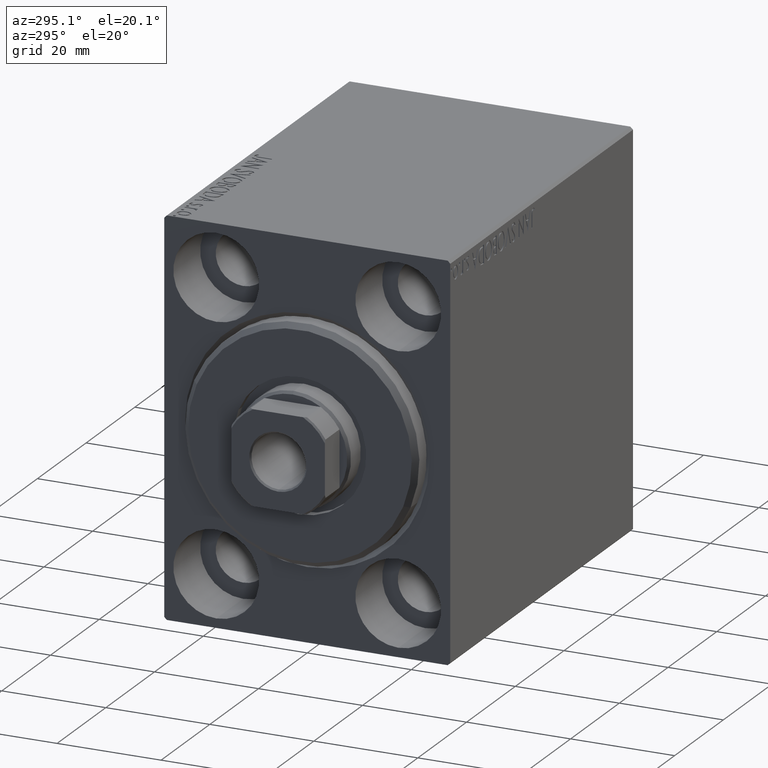
[diagram: clean part render]
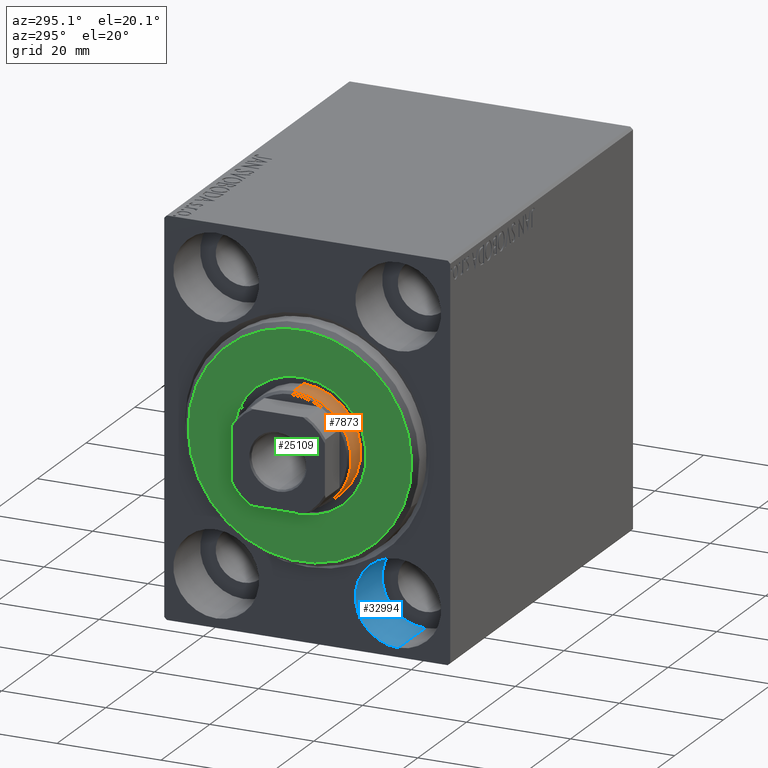
[diagram: same view with three faces highlighted in distinct colors, each labeled with its STEP entity id]
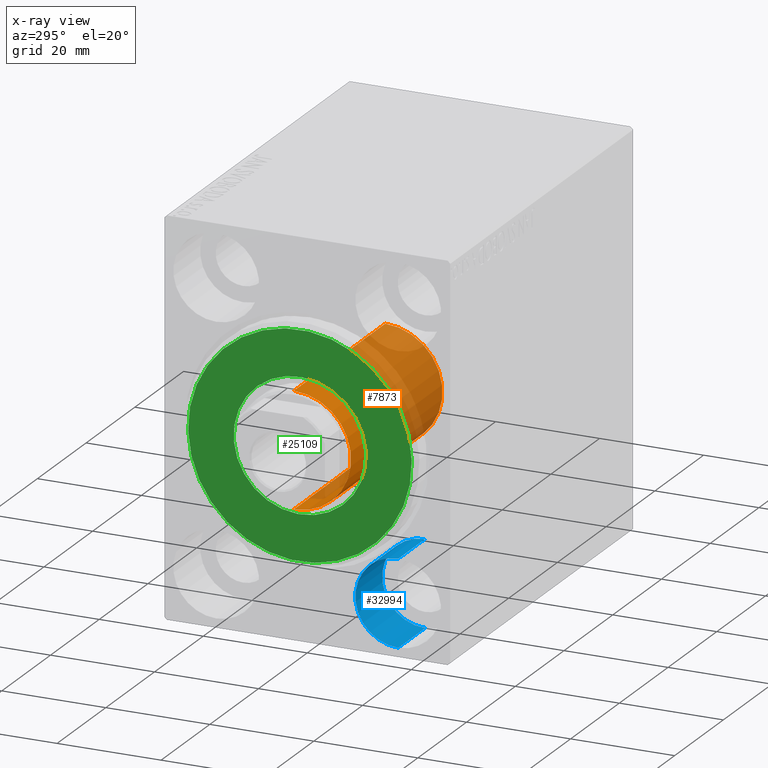
[diagram: x-ray of the same camera — body ghosted, the three highlighted faces saturated]
A machine part, auxiliary view with three faces highlighted in distinct colors.
The next image is the same camera in x-ray (body ghosted, the three faces saturated) — at least one of them is partly hidden behind the body in this view.
Their STEP definitions:

[orange] entity #7873 — the highlighted cylindrical surface (partial cylindrical patch) has radius 11 mm, axis along (1, -0, -0).
#629 = CARTESIAN_POINT ( 'NONE',  ( 11.00000000000000000, 1.347111479062088405E-15, 71.00000000000001421 ) ) ;
#1536 = DIRECTION ( 'NONE',  ( 1.000000000000000000, 0.000000000000000000, 0.000000000000000000 ) ) ;
#2040 = VECTOR ( 'NONE', #42073, 1000.000000000000000 ) ;
#3826 = DIRECTION ( 'NONE',  ( 1.000000000000000000, 0.000000000000000000, 0.000000000000000000 ) ) ;
#4410 = DIRECTION ( 'NONE',  ( 0.000000000000000000, 0.000000000000000000, -1.000000000000000000 ) ) ;
#5374 = CARTESIAN_POINT ( 'NONE',  ( -11.00000000000000000, 0.000000000000000000, 70.50000000000002842 ) ) ;
#6609 = EDGE_CURVE ( 'NONE', #34432, #40730, #32185, .T. ) ;
#6959 = EDGE_CURVE ( 'NONE', #12022, #11930, #20902, .T. ) ;
#7501 = CYLINDRICAL_SURFACE ( 'NONE', #43485, 11.00000000000000000 ) ;
#7873 = ADVANCED_FACE ( 'NONE', ( #25341 ), #7501, .T. ) ;
#11074 = AXIS2_PLACEMENT_3D ( 'NONE', #34007, #20134, #3826 ) ;
#11930 = VERTEX_POINT ( 'NONE', #5374 ) ;
#12022 = VERTEX_POINT ( 'NONE', #14610 ) ;
#13533 = VECTOR ( 'NONE', #17152, 1000.000000000000000 ) ;
#14500 = CARTESIAN_POINT ( 'NONE',  ( 11.00000000000000000, 1.347111479062088405E-15, 33.00000000000000000 ) ) ;
#14610 = CARTESIAN_POINT ( 'NONE',  ( 11.00000000000000000, 1.347111479062088405E-15, 70.50000000000002842 ) ) ;
#15673 = EDGE_CURVE ( 'NONE', #11930, #34432, #38557, .T. ) ;
#17152 = DIRECTION ( 'NONE',  ( -0.000000000000000000, -0.000000000000000000, -1.000000000000000000 ) ) ;
#20134 = DIRECTION ( 'NONE',  ( 0.000000000000000000, 0.000000000000000000, 1.000000000000000000 ) ) ;
#20902 = CIRCLE ( 'NONE', #42753, 11.00000000000000000 ) ;
#20921 = CARTESIAN_POINT ( 'NONE',  ( 0.000000000000000000, 0.000000000000000000, 70.50000000000002842 ) ) ;
#20927 = CARTESIAN_POINT ( 'NONE',  ( 0.000000000000000000, 0.000000000000000000, 71.00000000000001421 ) ) ;
#21570 = ORIENTED_EDGE ( 'NONE', *, *, #6959, .T. ) ;
#22050 = ORIENTED_EDGE ( 'NONE', *, *, #6609, .T. ) ;
#23867 = ORIENTED_EDGE ( 'NONE', *, *, #27569, .F. ) ;
#25341 = FACE_OUTER_BOUND ( 'NONE', #30188, .T. ) ;
#27569 = EDGE_CURVE ( 'NONE', #12022, #40730, #40512, .T. ) ;
#29050 = ORIENTED_EDGE ( 'NONE', *, *, #15673, .T. ) ;
#30188 = EDGE_LOOP ( 'NONE', ( #23867, #21570, #29050, #22050 ) ) ;
#31071 = DIRECTION ( 'NONE',  ( -0.000000000000000000, -0.000000000000000000, -1.000000000000000000 ) ) ;
#32185 = CIRCLE ( 'NONE', #11074, 11.00000000000000000 ) ;
#34007 = CARTESIAN_POINT ( 'NONE',  ( 0.000000000000000000, 0.000000000000000000, 33.00000000000000000 ) ) ;
#34432 = VERTEX_POINT ( 'NONE', #37753 ) ;
#37753 = CARTESIAN_POINT ( 'NONE',  ( -11.00000000000000000, 0.000000000000000000, 33.00000000000000000 ) ) ;
#38557 = LINE ( 'NONE', #38772, #2040 ) ;
#38772 = CARTESIAN_POINT ( 'NONE',  ( -11.00000000000000000, 0.000000000000000000, 71.00000000000001421 ) ) ;
#40512 = LINE ( 'NONE', #629, #13533 ) ;
#40730 = VERTEX_POINT ( 'NONE', #14500 ) ;
#41201 = DIRECTION ( 'NONE',  ( -1.000000000000000000, 0.000000000000000000, 0.000000000000000000 ) ) ;
#42073 = DIRECTION ( 'NONE',  ( -0.000000000000000000, -0.000000000000000000, -1.000000000000000000 ) ) ;
#42753 = AXIS2_PLACEMENT_3D ( 'NONE', #20921, #4410, #1536 ) ;
#43485 = AXIS2_PLACEMENT_3D ( 'NONE', #20927, #31071, #41201 ) ;

[blue] entity #32994 — the highlighted cylindrical surface (partial cylindrical patch) has radius 8.25 mm, axis along (-1, -0, -0).
#371 = CIRCLE ( 'NONE', #6021, 8.250000000000000000 ) ;
#2100 = CARTESIAN_POINT ( 'NONE',  ( 11.00000000000000000, -17.50000000000000355, -35.75000000000000711 ) ) ;
#3353 = AXIS2_PLACEMENT_3D ( 'NONE', #28409, #31065, #24230 ) ;
#4024 = LINE ( 'NONE', #26514, #10711 ) ;
#6021 = AXIS2_PLACEMENT_3D ( 'NONE', #29639, #12902, #16419 ) ;
#6336 = EDGE_LOOP ( 'NONE', ( #17783, #28660, #12942, #10340 ) ) ;
#6883 = EDGE_CURVE ( 'NONE', #18039, #8090, #25864, .T. ) ;
#8090 = VERTEX_POINT ( 'NONE', #17151 ) ;
#8246 = FACE_OUTER_BOUND ( 'NONE', #6336, .T. ) ;
#8715 = DIRECTION ( 'NONE',  ( -1.000000000000000000, -0.000000000000000000, -0.000000000000000000 ) ) ;
#8904 = DIRECTION ( 'NONE',  ( 0.000000000000000000, 0.000000000000000000, 1.000000000000000000 ) ) ;
#10340 = ORIENTED_EDGE ( 'NONE', *, *, #41155, .T. ) ;
#10410 = DIRECTION ( 'NONE',  ( -1.000000000000000000, -0.000000000000000000, -0.000000000000000000 ) ) ;
#10711 = VECTOR ( 'NONE', #10410, 1000.000000000000000 ) ;
#11419 = AXIS2_PLACEMENT_3D ( 'NONE', #28732, #35357, #8904 ) ;
#12677 = LINE ( 'NONE', #2100, #20136 ) ;
#12902 = DIRECTION ( 'NONE',  ( -1.000000000000000000, 0.000000000000000000, 0.000000000000000000 ) ) ;
#12942 = ORIENTED_EDGE ( 'NONE', *, *, #25928, .T. ) ;
#16112 = CARTESIAN_POINT ( 'NONE',  ( 11.00000000000000000, -17.50000000000000355, -19.25000000000000355 ) ) ;
#16419 = DIRECTION ( 'NONE',  ( 0.000000000000000000, 0.000000000000000000, 1.000000000000000000 ) ) ;
#17151 = CARTESIAN_POINT ( 'NONE',  ( 11.00000000000000000, -17.50000000000000355, -35.75000000000000711 ) ) ;
#17783 = ORIENTED_EDGE ( 'NONE', *, *, #43462, .F. ) ;
#18039 = VERTEX_POINT ( 'NONE', #16112 ) ;
#20136 = VECTOR ( 'NONE', #8715, 1000.000000000000000 ) ;
#21677 = CYLINDRICAL_SURFACE ( 'NONE', #11419, 8.250000000000000000 ) ;
#24230 = DIRECTION ( 'NONE',  ( 0.000000000000000000, 0.000000000000000000, 1.000000000000000000 ) ) ;
#25864 = CIRCLE ( 'NONE', #3353, 8.250000000000000000 ) ;
#25928 = EDGE_CURVE ( 'NONE', #18039, #34531, #4024, .T. ) ;
#26514 = CARTESIAN_POINT ( 'NONE',  ( 11.00000000000000000, -17.50000000000000355, -19.25000000000000355 ) ) ;
#28409 = CARTESIAN_POINT ( 'NONE',  ( 11.00000000000000000, -17.50000000000000355, -27.50000000000000355 ) ) ;
#28660 = ORIENTED_EDGE ( 'NONE', *, *, #6883, .F. ) ;
#28732 = CARTESIAN_POINT ( 'NONE',  ( 11.00000000000000000, -17.50000000000000355, -27.50000000000000355 ) ) ;
#29639 = CARTESIAN_POINT ( 'NONE',  ( 0.000000000000000000, -17.50000000000000355, -27.50000000000000355 ) ) ;
#31065 = DIRECTION ( 'NONE',  ( -1.000000000000000000, 0.000000000000000000, 0.000000000000000000 ) ) ;
#31675 = VERTEX_POINT ( 'NONE', #34094 ) ;
#32994 = ADVANCED_FACE ( 'NONE', ( #8246 ), #21677, .F. ) ;
#34094 = CARTESIAN_POINT ( 'NONE',  ( 0.000000000000000000, -17.50000000000000355, -35.75000000000000711 ) ) ;
#34531 = VERTEX_POINT ( 'NONE', #35282 ) ;
#35282 = CARTESIAN_POINT ( 'NONE',  ( 0.000000000000000000, -17.50000000000000355, -19.25000000000000355 ) ) ;
#35357 = DIRECTION ( 'NONE',  ( -1.000000000000000000, -0.000000000000000000, -0.000000000000000000 ) ) ;
#41155 = EDGE_CURVE ( 'NONE', #34531, #31675, #371, .T. ) ;
#43462 = EDGE_CURVE ( 'NONE', #8090, #31675, #12677, .T. ) ;

[green] entity #25109 — the highlighted planar face has unit normal (-1, 0, 0).
#512 = CARTESIAN_POINT ( 'NONE',  ( 3.000000000000000000, 0.000000000000000000, 0.000000000000000000 ) ) ;
#652 = EDGE_LOOP ( 'NONE', ( #15215, #18585 ) ) ;
#908 = ORIENTED_EDGE ( 'NONE', *, *, #5969, .T. ) ;
#1015 = CARTESIAN_POINT ( 'NONE',  ( 3.000000000000000000, 0.000000000000000000, 12.75000000000000000 ) ) ;
#1279 = VERTEX_POINT ( 'NONE', #1015 ) ;
#1795 = CARTESIAN_POINT ( 'NONE',  ( 3.000000000000000000, 0.000000000000000000, 21.50000000000000355 ) ) ;
#2458 = DIRECTION ( 'NONE',  ( -1.000000000000000000, 0.000000000000000000, -0.000000000000000000 ) ) ;
#3085 = DIRECTION ( 'NONE',  ( 1.000000000000000000, -0.000000000000000000, 0.000000000000000000 ) ) ;
#4579 = VERTEX_POINT ( 'NONE', #1795 ) ;
#5769 = AXIS2_PLACEMENT_3D ( 'NONE', #23839, #20534, #17227 ) ;
#5969 = EDGE_CURVE ( 'NONE', #9019, #1279, #32153, .T. ) ;
#6465 = FACE_OUTER_BOUND ( 'NONE', #652, .T. ) ;
#6895 = PLANE ( 'NONE',  #5769 ) ;
#7722 = CIRCLE ( 'NONE', #23919, 21.50000000000000355 ) ;
#9019 = VERTEX_POINT ( 'NONE', #18706 ) ;
#11429 = VERTEX_POINT ( 'NONE', #37432 ) ;
#15215 = ORIENTED_EDGE ( 'NONE', *, *, #18618, .T. ) ;
#17227 = DIRECTION ( 'NONE',  ( 0.000000000000000000, 0.000000000000000000, -1.000000000000000000 ) ) ;
#18585 = ORIENTED_EDGE ( 'NONE', *, *, #27514, .T. ) ;
#18618 = EDGE_CURVE ( 'NONE', #4579, #11429, #7722, .T. ) ;
#18706 = CARTESIAN_POINT ( 'NONE',  ( 3.000000000000000000, 1.561424668912874914E-15, -12.75000000000000000 ) ) ;
#20342 = DIRECTION ( 'NONE',  ( 0.000000000000000000, 0.000000000000000000, -1.000000000000000000 ) ) ;
#20534 = DIRECTION ( 'NONE',  ( 1.000000000000000000, -0.000000000000000000, 0.000000000000000000 ) ) ;
#23839 = CARTESIAN_POINT ( 'NONE',  ( 3.000000000000000000, 0.000000000000000000, 0.000000000000000000 ) ) ;
#23919 = AXIS2_PLACEMENT_3D ( 'NONE', #512, #40822, #20342 ) ;
#25109 = ADVANCED_FACE ( 'NONE', ( #6465, #36861 ), #6895, .T. ) ;
#26867 = AXIS2_PLACEMENT_3D ( 'NONE', #38957, #35657, #41814 ) ;
#26904 = CIRCLE ( 'NONE', #38154, 21.50000000000000355 ) ;
#27514 = EDGE_CURVE ( 'NONE', #11429, #4579, #26904, .T. ) ;
#30439 = EDGE_CURVE ( 'NONE', #1279, #9019, #34590, .T. ) ;
#32153 = CIRCLE ( 'NONE', #36373, 12.75000000000000000 ) ;
#34590 = CIRCLE ( 'NONE', #26867, 12.75000000000000000 ) ;
#35298 = CARTESIAN_POINT ( 'NONE',  ( 3.000000000000000000, 0.000000000000000000, 0.000000000000000000 ) ) ;
#35304 = ORIENTED_EDGE ( 'NONE', *, *, #30439, .T. ) ;
#35378 = EDGE_LOOP ( 'NONE', ( #35304, #908 ) ) ;
#35657 = DIRECTION ( 'NONE',  ( -1.000000000000000000, 0.000000000000000000, -0.000000000000000000 ) ) ;
#35740 = DIRECTION ( 'NONE',  ( 0.000000000000000000, 0.000000000000000000, -1.000000000000000000 ) ) ;
#36373 = AXIS2_PLACEMENT_3D ( 'NONE', #35298, #2458, #35740 ) ;
#36788 = CARTESIAN_POINT ( 'NONE',  ( 3.000000000000000000, 0.000000000000000000, 0.000000000000000000 ) ) ;
#36861 = FACE_BOUND ( 'NONE', #35378, .T. ) ;
#36999 = DIRECTION ( 'NONE',  ( 0.000000000000000000, 0.000000000000000000, -1.000000000000000000 ) ) ;
#37432 = CARTESIAN_POINT ( 'NONE',  ( 3.000000000000000000, 2.694222958124177598E-15, -21.50000000000000355 ) ) ;
#38154 = AXIS2_PLACEMENT_3D ( 'NONE', #36788, #3085, #36999 ) ;
#38957 = CARTESIAN_POINT ( 'NONE',  ( 3.000000000000000000, 0.000000000000000000, 0.000000000000000000 ) ) ;
#40822 = DIRECTION ( 'NONE',  ( 1.000000000000000000, -0.000000000000000000, 0.000000000000000000 ) ) ;
#41814 = DIRECTION ( 'NONE',  ( 0.000000000000000000, 0.000000000000000000, -1.000000000000000000 ) ) ;